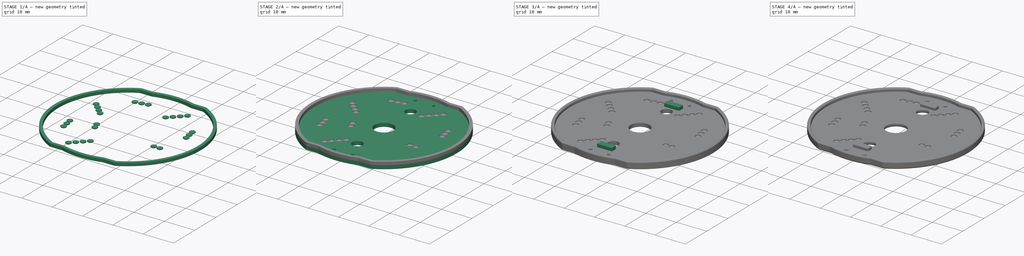
[diagram: build sequence overview — one tinted view per stage of 4, left to right]
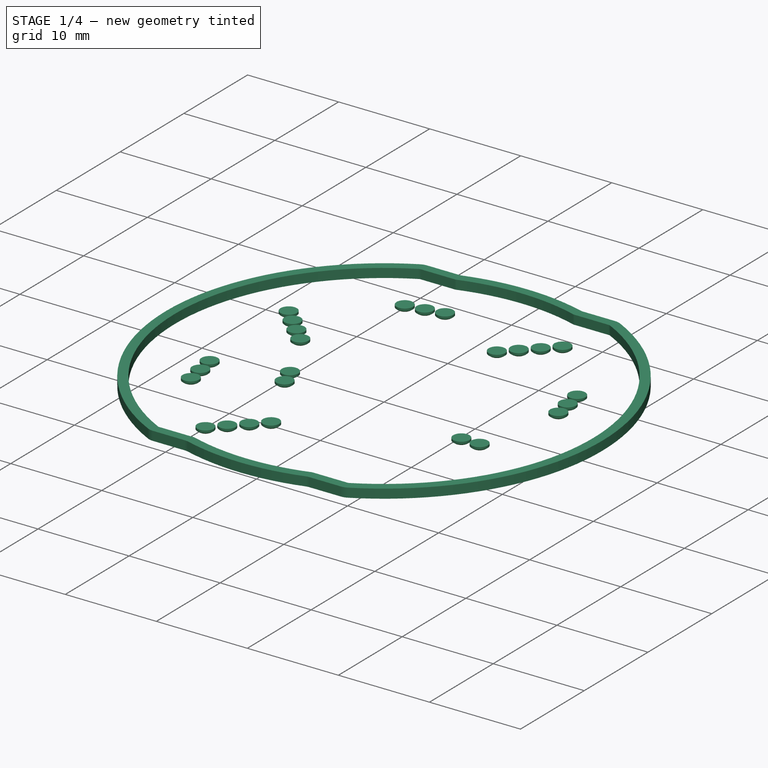
[diagram: stage 1 of 4 — iso view after this stage's code; geometry added in this stage tinted green]
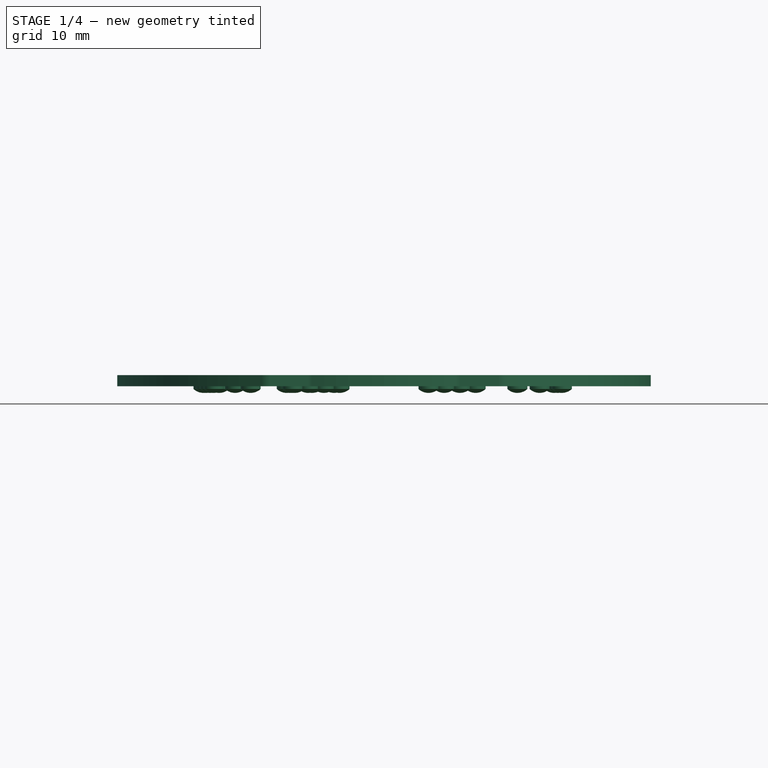
[diagram: stage 1 of 4 — front view after this stage's code; geometry added in this stage tinted green]
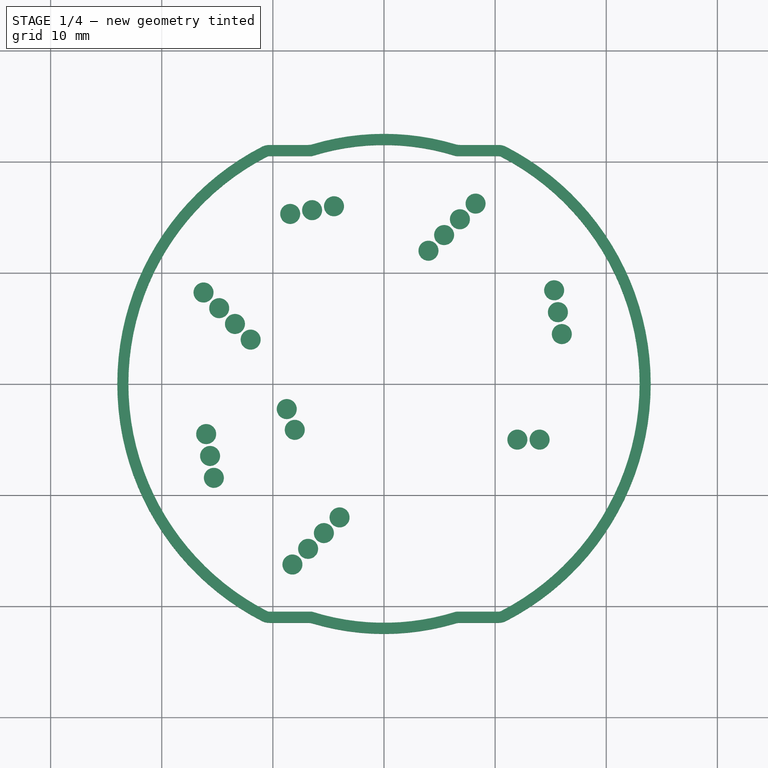
[diagram: stage 1 of 4 — top view after this stage's code; geometry added in this stage tinted green]
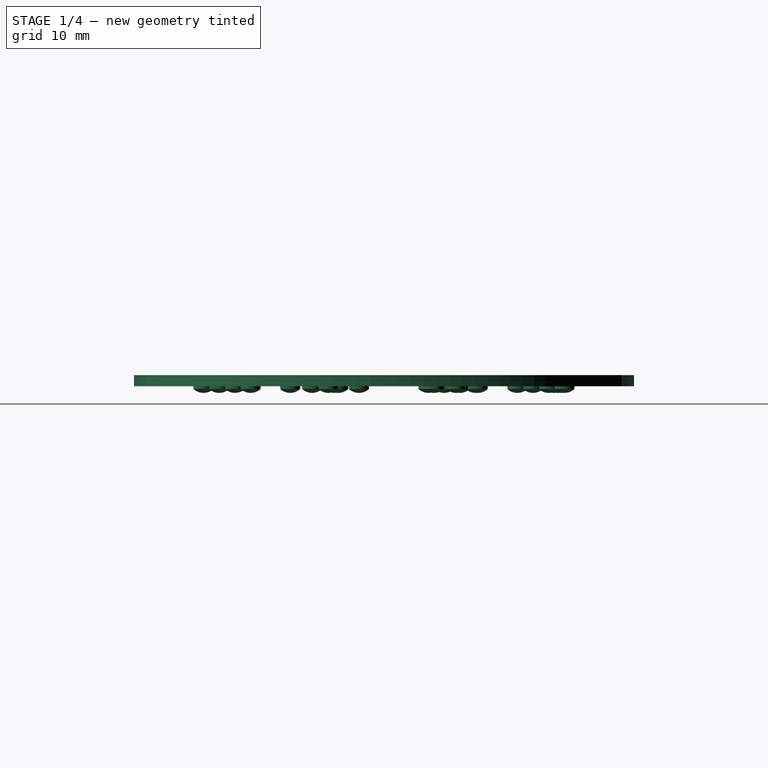
[diagram: stage 1 of 4 — right view after this stage's code; geometry added in this stage tinted green]
FCSTD DOCUMENT  (FreeCAD 0.18R16093 (Git))
Label: BackPlateMotor
License: All rights reserved
LicenseURL: http://en.wikipedia.org/wiki/All_rights_reserved
objects: Part::FeaturePython×26, Sketcher::SketchObject×4, PartDesign::Body×4, PartDesign::Fillet×4, PartDesign::Pad×3, PartDesign::Pocket×1, Part::Fuse×1, PartDesign::Revolution×1, Part::Part2DObjectPython×1, Part::Cut×1, PartDesign::FeatureBase×1, PartDesign::Chamfer×1
note: 53 computed .brp shape members not serialized (recipe doc carries the construction recipe); baked Part::Feature solids carry a one-line shape summary decoded from their .brp

FEATURE [PartDesign::Body] Body003
  Group = -> [Sketch003,Pad]
  Origin = -> Origin003
  Tip = -> Pad
FEATURE [PartDesign::Pad] Pad001
  Length = 1
  Length2 = 100
  Profile = -> Sketch003
  Type = 0
FEATURE [PartDesign::Pocket] Pocket
  BaseFeature = -> Pad001
  Length = 5
  Length2 = 100
  Profile = -> Sketch002
  Reversed = true
  Type = 1
FEATURE [Sketcher::SketchObject] Sketch001
  MapMode = 5
  Placement = pos=(0,0,0) rot=(1,0,0;1.5708rad)
  Support = -> [XZ_Plane001]
  sketch-geometry (4):
    g0: LineSegment StartX=0 StartY=0 StartZ=0 EndX=0.9 EndY=0 EndZ=0
    g1: LineSegment StartX=0.9 StartY=0 StartZ=0 EndX=0.9 EndY=-0.25 EndZ=0
    g2: ArcOfCircle CenterX=0 CenterY=0.732143 CenterZ=0 NormalX=0 NormalY=0 NormalZ=1 AngleXU=0 Radius=1.33214 StartAngle=4.71239 EndAngle=5.45417
    g3: LineSegment StartX=0 StartY=0 StartZ=0 EndX=-2e-16 EndY=-0.6 EndZ=0
  constraints (12):
    c: Coincident(g0,g-1)
    c: Horizontal(g0)
    c: Coincident(g1,g0)
    c: Vertical(g1)
    c: PointOnObject(g2,g-2)
    c: Coincident(g2,g1)
    c: PointOnObject(g2,g-2)
    c: Coincident(g3,g2)
    c: DistanceX(g0,g0) = 0.9
    c: DistanceY(g1,g1) = 0.25
    c: Coincident(g3,g0)
    c: DistanceY(g3,g3) = 0.6
FEATURE [PartDesign::Revolution] Revolution001
  Angle = 360
  Axis = (0,2e-16,1)
  Base = (0,0,0)
  Placement = pos=(0,0,0) rot=(1,0,0;1.5708rad)
  Profile = -> Sketch001
  ReferenceAxis = -> Sketch001 [V_Axis]
  Reversed = true
FEATURE [PartDesign::Body] Body001
  Group = -> [Sketch001,Revolution001]
  Origin = -> Origin001
  Tip = -> Revolution001
FEATURE [Part::FeaturePython] Point  # WARN: FeaturePython — macro-defined, semantics opaque (R4)
  X = 12
  Y = -5
  Z = 0
FEATURE [Part::FeaturePython] Point001  # WARN: FeaturePython — macro-defined, semantics opaque (R4)
  X = 14
  Y = -5
  Z = 0
FEATURE [Part::FeaturePython] Point002  # WARN: FeaturePython — macro-defined, semantics opaque (R4)
  X = -4
  Y = -12
  Z = 0
FEATURE [Part::FeaturePython] Point003  # WARN: FeaturePython — macro-defined, semantics opaque (R4)
  X = -5.41
  Y = -13.41
  Z = 0
FEATURE [Part::FeaturePython] Point004  # WARN: FeaturePython — macro-defined, semantics opaque (R4)
  X = -6.83
  Y = -14.83
  Z = 0
FEATURE [Part::FeaturePython] Point005  # WARN: FeaturePython — macro-defined, semantics opaque (R4)
  X = -8.24
  Y = -16.24
  Z = 0
FEATURE [Part::FeaturePython] Point006  # WARN: FeaturePython — macro-defined, semantics opaque (R4)
  X = -8.03
  Y = -4.12
  Z = 0
FEATURE [Part::FeaturePython] Point007  # WARN: FeaturePython — macro-defined, semantics opaque (R4)
  X = -8.75
  Y = -2.25
  Z = 0
FEATURE [Part::FeaturePython] Point008  # WARN: FeaturePython — macro-defined, semantics opaque (R4)
  X = -15.31
  Y = -8.44
  Z = 0
FEATURE [Part::FeaturePython] Point010  label="Point009"  # WARN: FeaturePython — macro-defined, semantics opaque (R4)
  X = -15.65
  Y = -6.47
  Z = 0
FEATURE [Part::FeaturePython] Point011  # WARN: FeaturePython — macro-defined, semantics opaque (R4)
  X = -16
  Y = -4.5
  Z = 0
FEATURE [Part::FeaturePython] Point012  # WARN: FeaturePython — macro-defined, semantics opaque (R4)
  X = -12
  Y = 4
  Z = 0
FEATURE [Part::FeaturePython] Point013  # WARN: FeaturePython — macro-defined, semantics opaque (R4)
  X = -13.41
  Y = 5.41
  Z = 0
FEATURE [Part::FeaturePython] Point014  # WARN: FeaturePython — macro-defined, semantics opaque (R4)
  X = -14.83
  Y = 6.83
  Z = 0
FEATURE [Part::FeaturePython] Point015  # WARN: FeaturePython — macro-defined, semantics opaque (R4)
  X = -16.24
  Y = 8.24
  Z = 0
FEATURE [Part::FeaturePython] Point016  # WARN: FeaturePython — macro-defined, semantics opaque (R4)
  X = -4.5
  Y = 16
  Z = 0
FEATURE [Part::FeaturePython] Point017  # WARN: FeaturePython — macro-defined, semantics opaque (R4)
  X = -6.47
  Y = 15.65
  Z = 0
FEATURE [Part::FeaturePython] Point018  # WARN: FeaturePython — macro-defined, semantics opaque (R4)
  X = -8.44
  Y = 15.31
  Z = 0
FEATURE [Part::FeaturePython] Point019  # WARN: FeaturePython — macro-defined, semantics opaque (R4)
  X = 4
  Y = 12
  Z = 0
FEATURE [Part::FeaturePython] Point020  # WARN: FeaturePython — macro-defined, semantics opaque (R4)
  X = 5.41
  Y = 13.41
  Z = 0
FEATURE [Part::FeaturePython] Point021  # WARN: FeaturePython — macro-defined, semantics opaque (R4)
  X = 6.83
  Y = 14.83
  Z = 0
FEATURE [Part::FeaturePython] Point022  # WARN: FeaturePython — macro-defined, semantics opaque (R4)
  X = 8.24
  Y = 16.24
  Z = 0
FEATURE [Part::FeaturePython] Point023  # WARN: FeaturePython — macro-defined, semantics opaque (R4)
  X = 16
  Y = 4.5
  Z = 0
FEATURE [Part::FeaturePython] Point024  # WARN: FeaturePython — macro-defined, semantics opaque (R4)
  X = 15.65
  Y = 6.47
  Z = 0
FEATURE [Part::FeaturePython] Point025  # WARN: FeaturePython — macro-defined, semantics opaque (R4)
  X = 15.31
  Y = 8.44
  Z = 0
FEATURE [Part::Part2DObjectPython] Block  # Draft 2D object (typed FeaturePython)
  Components = -> [Point,Point010,Point002,Point003,Point005,Point007,Point006,Point017,Point011,Point016,Point004,Point001,Point013,Point008,Point019,Point014,Point015,Point012,Point018,Point020,Point021,Point023,Point022,Point024,Point025]
FEATURE [Part::FeaturePython] PointArray  # WARN: FeaturePython — macro-defined, semantics opaque (R4)
  Base = -> Body001
  Count = 25
  PointList = -> Block
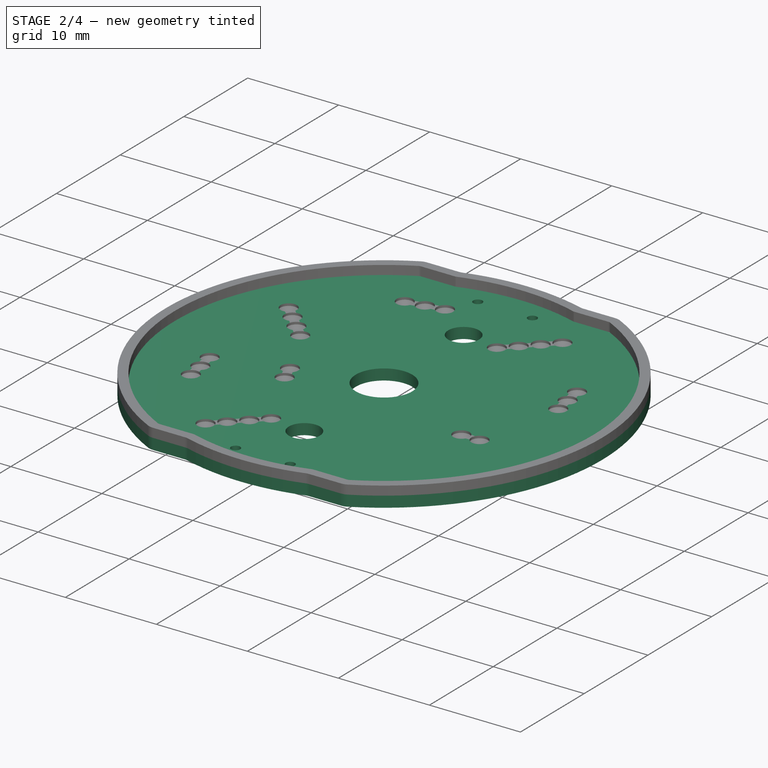
[diagram: stage 2 of 4 — iso view after this stage's code; geometry added in this stage tinted green]
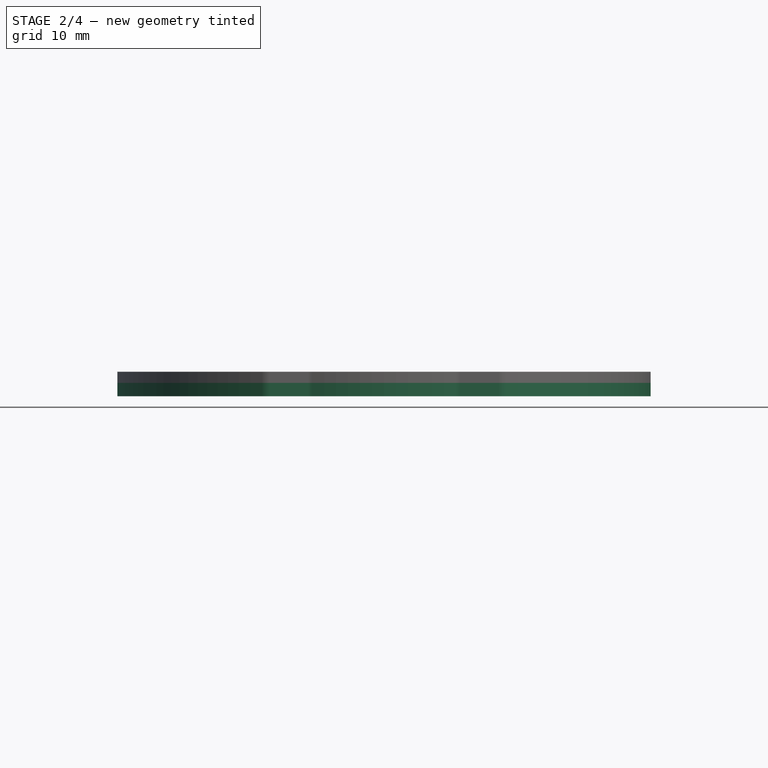
[diagram: stage 2 of 4 — front view after this stage's code; geometry added in this stage tinted green]
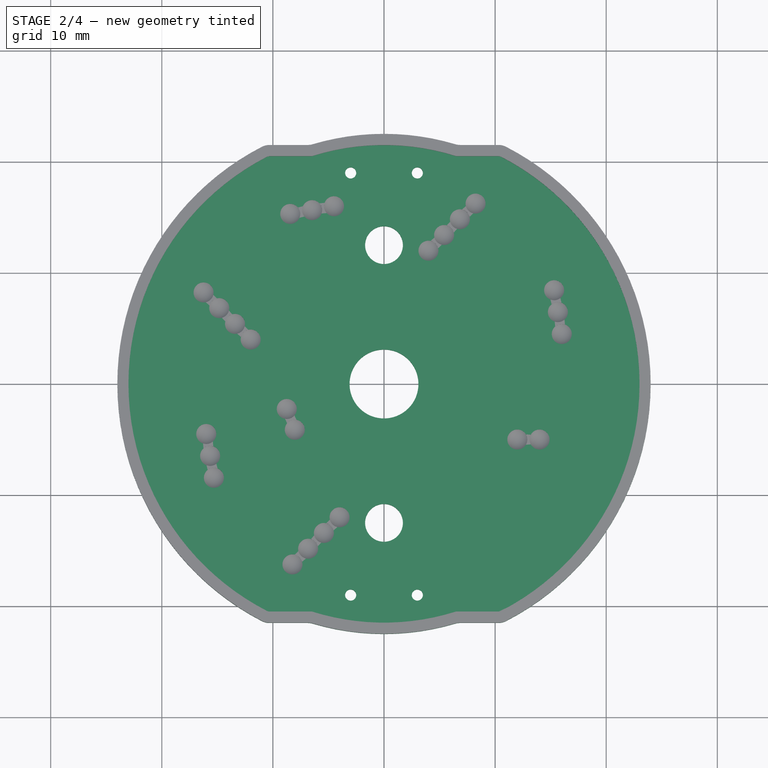
[diagram: stage 2 of 4 — top view after this stage's code; geometry added in this stage tinted green]
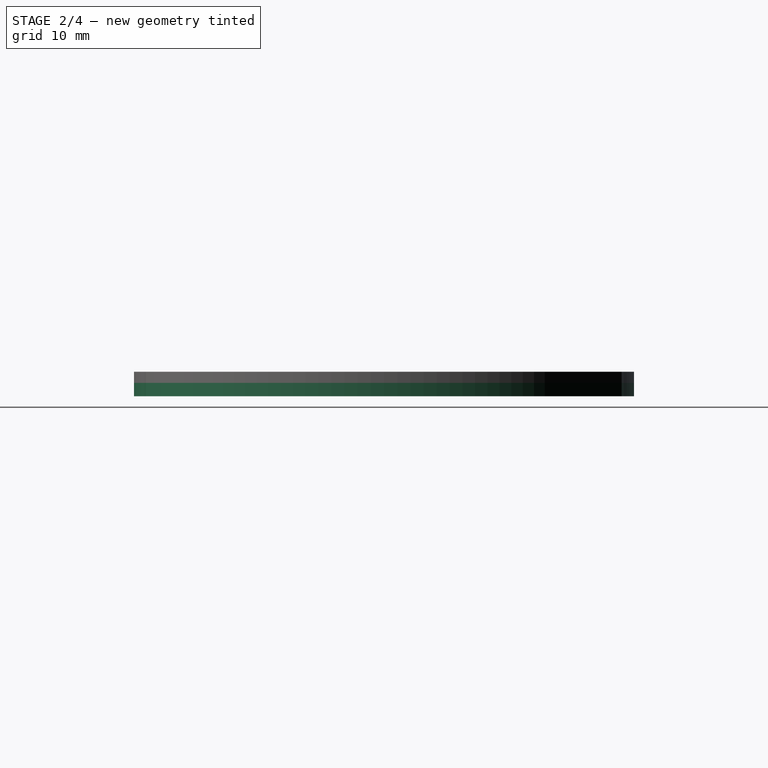
[diagram: stage 2 of 4 — right view after this stage's code; geometry added in this stage tinted green]
FEATURE [Sketcher::SketchObject] Sketch002
  MapMode = 5
  Support = -> [XY_Plane002]
  sketch-geometry (26):
    g0: ArcOfCircle [constr] CenterX=0 CenterY=0 CenterZ=0 NormalX=0 NormalY=0 NormalZ=1 AngleXU=0 Radius=22.5 StartAngle=2.04668 EndAngle=4.23651
    g1: ArcOfCircle [constr] CenterX=0 CenterY=0 CenterZ=0 NormalX=0 NormalY=0 NormalZ=1 AngleXU=0 Radius=22.5 StartAngle=5.18827 EndAngle=7.3781
    g2: ArcOfCircle [constr] CenterX=0 CenterY=0 CenterZ=0 NormalX=0 NormalY=0 NormalZ=1 AngleXU=0 Radius=21 StartAngle=1.26095 EndAngle=1.88064
    g3: ArcOfCircle [constr] CenterX=0 CenterY=0 CenterZ=0 NormalX=0 NormalY=0 NormalZ=1 AngleXU=0 Radius=21 StartAngle=4.40254 EndAngle=5.02223
    g4: LineSegment [constr] StartX=-10.3078 StartY=20 StartZ=0 EndX=-6.40312 EndY=20 EndZ=0
    g5: LineSegment [constr] StartX=6.40312 StartY=20 StartZ=0 EndX=10.3078 EndY=20 EndZ=0
    g6: LineSegment [constr] StartX=-10.3078 StartY=-20 StartZ=0 EndX=-6.40312 EndY=-20 EndZ=0
    g7: LineSegment [constr] StartX=6.40312 StartY=-20 StartZ=0 EndX=10.3078 EndY=-20 EndZ=0
    g8: LineSegment [constr] StartX=-6.40312 StartY=-20 StartZ=0 EndX=6.40312 EndY=-20 EndZ=0
    g9: LineSegment [constr] StartX=-6.40312 StartY=20 StartZ=0 EndX=6.40312 EndY=20 EndZ=0
    g10: ArcOfCircle CenterX=0 CenterY=0 CenterZ=0 NormalX=0 NormalY=0 NormalZ=1 AngleXU=0 Radius=23 StartAngle=2.04668 EndAngle=4.23651
    g11: ArcOfCircle CenterX=0 CenterY=0 CenterZ=0 NormalX=0 NormalY=0 NormalZ=1 AngleXU=0 Radius=23 StartAngle=5.18827 EndAngle=7.3781
    g12: LineSegment StartX=-10.3078 StartY=20.5 StartZ=0 EndX=-6.55744 EndY=20.5 EndZ=0
    g13: ArcOfCircle CenterX=-10.3078 CenterY=20 CenterZ=0 NormalX=0 NormalY=0 NormalZ=1 AngleXU=0 Radius=0.5 StartAngle=1.5708 EndAngle=2.04668
    g14: ArcOfCircle CenterX=-10.3078 CenterY=-20 CenterZ=0 NormalX=0 NormalY=0 NormalZ=1 AngleXU=0 Radius=0.5 StartAngle=4.23651 EndAngle=4.71239
    g15: LineSegment StartX=-10.3078 StartY=-20.5 StartZ=0 EndX=-6.55744 EndY=-20.5 EndZ=0
    g16: ArcOfCircle CenterX=-6.55744 CenterY=-21 CenterZ=0 NormalX=0 NormalY=0 NormalZ=1 AngleXU=0 Radius=0.5 StartAngle=1.26813 EndAngle=1.5708
    g17: ArcOfCircle CenterX=0 CenterY=0 CenterZ=0 NormalX=0 NormalY=0 NormalZ=1 AngleXU=0 Radius=21.5 StartAngle=4.40972 EndAngle=5.01505
    g18: LineSegment StartX=6.55744 StartY=-20.5 StartZ=0 EndX=10.3078 EndY=-20.5 EndZ=0
    g19: ArcOfCircle CenterX=6.55744 CenterY=-21 CenterZ=0 NormalX=0 NormalY=0 NormalZ=1 AngleXU=0 Radius=0.5 StartAngle=1.5708 EndAngle=1.87346
    g20: ArcOfCircle CenterX=10.3078 CenterY=-20 CenterZ=0 NormalX=0 NormalY=0 NormalZ=1 AngleXU=0 Radius=0.5 StartAngle=4.71239 EndAngle=5.18827
    g21: ArcOfCircle CenterX=-6.55744 CenterY=21 CenterZ=0 NormalX=0 NormalY=0 NormalZ=1 AngleXU=0 Radius=0.5 StartAngle=4.71239 EndAngle=5.01505
    g22: ArcOfCircle CenterX=0 CenterY=0 CenterZ=0 NormalX=0 NormalY=0 NormalZ=1 AngleXU=0 Radius=21.5 StartAngle=1.26813 EndAngle=1.87346
    g23: LineSegment StartX=6.55744 StartY=20.5 StartZ=0 EndX=10.3078 EndY=20.5 EndZ=0
    g24: ArcOfCircle CenterX=6.55744 CenterY=21 CenterZ=0 NormalX=0 NormalY=0 NormalZ=1 AngleXU=0 Radius=0.5 StartAngle=4.40972 EndAngle=4.71239
    g25: ArcOfCircle CenterX=10.3078 CenterY=20 CenterZ=0 NormalX=0 NormalY=0 NormalZ=1 AngleXU=0 Radius=0.5 StartAngle=1.09491 EndAngle=1.5708
  constraints (63):
    c: Coincident(g0,g-1)
    c: Coincident(g1,g0)
    c: Coincident(g2,g0)
    c: Coincident(g3,g0)
    c: Equal(g0,g1)
    c: Radius(g1) = 22.5
    c: Radius(g2) = 21
    c: Coincident(g4,g0)
    c: Coincident(g4,g2)
    c: Coincident(g5,g2)
    c: Coincident(g5,g1)
    c: Horizontal(g4)
    c: Horizontal(g5)
    c: Coincident(g6,g0)
    c: Coincident(g6,g3)
    c: Coincident(g7,g3)
    c: Coincident(g7,g1)
    c: Horizontal(g7)
    c: Horizontal(g6)
    c: DistanceY(g3,g0) = 20
    c: Coincident(g8,g3)
    c: Coincident(g8,g3)
    c: Coincident(g9,g2)
    c: Coincident(g9,g2)
    c: Horizontal(g9)
    c: Horizontal(g8)
    c: Symmetric(g3,g2,g0)
    c: Coincident(g11,g10)
    c: Horizontal(g12)
    c: Coincident(g13,g0)
    c: Tangent(g13,g12) = 1.5708
    c: Tangent(g13,g10) = -1.5708
    c: Radius(g13) = 0.5
    c: Coincident(g14,g0)
    c: Tangent(g14,g10) = -1.5708
    c: Horizontal(g15)
    c: Tangent(g15,g14) = -1.5708
    c: Coincident(g17,g-1)
    c: Tangent(g15,g16) = 1.5708
    c: Tangent(g17,g16) = 1.5708
    c: Horizontal(g18)
    c: Equal(g16,g13)
    c: Coincident(g10,g17)
    c: Tangent(g19,g17) = 1.5708
    c: Tangent(g19,g18) = 1.5708
    c: Tangent(g20,g18) = -1.5708
    c: Tangent(g11,g20) = -1.5708
    c: Equal(g19,g13)
    c: Coincident(g22,g10)
    c: Equal(g21,g13)
    c: Tangent(g21,g12) = -1.5708
    c: Tangent(g21,g22) = 1.5708
    c: Horizontal(g23)
    c: Coincident(g25,g1)
    c: Equal(g24,g13)
    c: Tangent(g24,g22) = 1.5708
    c: Tangent(g24,g23) = -1.5708
    c: Tangent(g25,g23) = 1.5708
    c: Tangent(g11,g25) = -1.5708
    c: Coincident(g20,g1)
    c: Equal(g22,g17)
    c: Radius(g22) = 21.5
    c: Equal(g20,g13)
FEATURE [Sketcher::SketchObject] Sketch003
  MapMode = 5
  Support = -> [XY_Plane003]
  sketch-geometry (33):
    g0: ArcOfCircle [constr] CenterX=0 CenterY=0 CenterZ=0 NormalX=0 NormalY=0 NormalZ=1 AngleXU=0 Radius=22.5 StartAngle=2.04668 EndAngle=4.23651
    g1: ArcOfCircle [constr] CenterX=0 CenterY=0 CenterZ=0 NormalX=0 NormalY=0 NormalZ=1 AngleXU=0 Radius=22.5 StartAngle=5.18827 EndAngle=7.3781
    g2: ArcOfCircle [constr] CenterX=0 CenterY=0 CenterZ=0 NormalX=0 NormalY=0 NormalZ=1 AngleXU=0 Radius=21 StartAngle=1.26095 EndAngle=1.88064
    g3: ArcOfCircle [constr] CenterX=0 CenterY=0 CenterZ=0 NormalX=0 NormalY=0 NormalZ=1 AngleXU=0 Radius=21 StartAngle=4.40254 EndAngle=5.02223
    g4: LineSegment [constr] StartX=-10.3078 StartY=20 StartZ=0 EndX=-6.40312 EndY=20 EndZ=0
    g5: LineSegment [constr] StartX=6.40312 StartY=20 StartZ=0 EndX=10.3078 EndY=20 EndZ=0
    g6: LineSegment [constr] StartX=-10.3078 StartY=-20 StartZ=0 EndX=-6.40312 EndY=-20 EndZ=0
    g7: LineSegment [constr] StartX=6.40312 StartY=-20 StartZ=0 EndX=10.3078 EndY=-20 EndZ=0
    g8: LineSegment [constr] StartX=-6.40312 StartY=-20 StartZ=0 EndX=6.40312 EndY=-20 EndZ=0
    g9: LineSegment [constr] StartX=-6.40312 StartY=20 StartZ=0 EndX=6.40312 EndY=20 EndZ=0
    g10: ArcOfCircle CenterX=0 CenterY=0 CenterZ=0 NormalX=0 NormalY=0 NormalZ=1 AngleXU=0 Radius=24 StartAngle=2.04668 EndAngle=4.23651
    g11: ArcOfCircle CenterX=0 CenterY=0 CenterZ=0 NormalX=0 NormalY=0 NormalZ=1 AngleXU=0 Radius=24 StartAngle=5.18827 EndAngle=7.3781
    g12: LineSegment StartX=-10.3078 StartY=21.5 StartZ=0 EndX=-6.85565 EndY=21.5 EndZ=0
    g13: ArcOfCircle CenterX=-10.3078 CenterY=20 CenterZ=0 NormalX=0 NormalY=0 NormalZ=1 AngleXU=0 Radius=1.5 StartAngle=1.5708 EndAngle=2.04668
    g14: ArcOfCircle CenterX=-10.3078 CenterY=-20 CenterZ=0 NormalX=0 NormalY=0 NormalZ=1 AngleXU=0 Radius=1.5 StartAngle=4.23651 EndAngle=4.71239
    g15: LineSegment StartX=-10.3078 StartY=-21.5 StartZ=0 EndX=-6.85565 EndY=-21.5 EndZ=0
    g16: ArcOfCircle CenterX=-6.85565 CenterY=-23 CenterZ=0 NormalX=0 NormalY=0 NormalZ=1 AngleXU=0 Radius=1.5 StartAngle=1.28111 EndAngle=1.5708
    g17: ArcOfCircle CenterX=0 CenterY=0 CenterZ=0 NormalX=0 NormalY=0 NormalZ=1 AngleXU=0 Radius=22.5 StartAngle=4.4227 EndAngle=5.00208
    g18: LineSegment StartX=6.85565 StartY=-21.5 StartZ=0 EndX=10.3078 EndY=-21.5 EndZ=0
    g19: ArcOfCircle CenterX=6.85565 CenterY=-23 CenterZ=0 NormalX=0 NormalY=0 NormalZ=1 AngleXU=0 Radius=1.5 StartAngle=1.5708 EndAngle=1.86048
    g20: ArcOfCircle CenterX=10.3078 CenterY=-20 CenterZ=0 NormalX=0 NormalY=0 NormalZ=1 AngleXU=0 Radius=1.5 StartAngle=4.71239 EndAngle=5.18827
    g21: ArcOfCircle CenterX=-6.85565 CenterY=23 CenterZ=0 NormalX=0 NormalY=0 NormalZ=1 AngleXU=0 Radius=1.5 StartAngle=4.71239 EndAngle=5.00208
    g22: ArcOfCircle CenterX=0 CenterY=0 CenterZ=0 NormalX=0 NormalY=0 NormalZ=1 AngleXU=0 Radius=22.5 StartAngle=1.28111 EndAngle=1.86048
    g23: LineSegment StartX=6.85565 StartY=21.5 StartZ=0 EndX=10.3078 EndY=21.5 EndZ=0
    g24: ArcOfCircle CenterX=6.85565 CenterY=23 CenterZ=0 NormalX=0 NormalY=0 NormalZ=1 AngleXU=0 Radius=1.5 StartAngle=4.4227 EndAngle=4.71239
    g25: ArcOfCircle CenterX=10.3078 CenterY=20 CenterZ=0 NormalX=0 NormalY=0 NormalZ=1 AngleXU=0 Radius=1.5 StartAngle=1.09491 EndAngle=1.5708
    g26: Circle CenterX=0 CenterY=0 CenterZ=0 NormalX=0 NormalY=0 NormalZ=1 AngleXU=0 Radius=3.1
    g27: Circle CenterX=0 CenterY=12.5 CenterZ=0 NormalX=0 NormalY=0 NormalZ=1 AngleXU=0 Radius=1.7
    g28: Circle CenterX=0 CenterY=-12.5 CenterZ=0 NormalX=0 NormalY=0 NormalZ=1 AngleXU=0 Radius=1.7
    g29: Circle CenterX=-3 CenterY=19 CenterZ=0 NormalX=0 NormalY=0 NormalZ=1 AngleXU=0 Radius=0.5
    g30: Circle CenterX=3 CenterY=19 CenterZ=0 NormalX=0 NormalY=0 NormalZ=1 AngleXU=0 Radius=0.5
    g31: Circle CenterX=-3 CenterY=-19 CenterZ=0 NormalX=0 NormalY=0 NormalZ=1 AngleXU=0 Radius=0.5
    g32: Circle CenterX=3 CenterY=-19 CenterZ=0 NormalX=0 NormalY=0 NormalZ=1 AngleXU=0 Radius=0.5
  constraints (79):
    c: Coincident(g0,g-1)
    c: Coincident(g1,g0)
    c: Coincident(g2,g0)
    c: Coincident(g3,g0)
    c: Equal(g0,g1)
    c: Radius(g1) = 22.5
    c: Radius(g2) = 21
    c: Coincident(g4,g0)
    c: Coincident(g4,g2)
    c: Coincident(g5,g2)
    c: Coincident(g5,g1)
    c: Horizontal(g4)
    c: Horizontal(g5)
    c: Coincident(g6,g0)
    c: Coincident(g6,g3)
    c: Coincident(g7,g3)
    c: Coincident(g7,g1)
    c: Horizontal(g7)
    c: Horizontal(g6)
    c: DistanceY(g3,g0) = 20
    c: Coincident(g8,g3)
    c: Coincident(g8,g3)
    c: Coincident(g9,g2)
    c: Coincident(g9,g2)
    c: Horizontal(g9)
    c: Horizontal(g8)
    c: Symmetric(g3,g2,g0)
    c: Coincident(g11,g10)
    c: Horizontal(g12)
    c: Coincident(g13,g0)
    c: Tangent(g13,g12) = 1.5708
    c: Tangent(g13,g10) = -1.5708
    c: Radius(g13) = 1.5
    c: Coincident(g14,g0)
    c: Tangent(g14,g10) = -1.5708
    c: Horizontal(g15)
    c: Tangent(g15,g14) = -1.5708
    c: Coincident(g17,g-1)
    c: Tangent(g15,g16) = 1.5708
    c: Tangent(g17,g16) = 1.5708
    c: Horizontal(g18)
    c: Equal(g16,g13)
    c: Coincident(g10,g17)
    c: Tangent(g19,g17) = 1.5708
    c: Tangent(g19,g18) = 1.5708
    c: Tangent(g20,g18) = -1.5708
    c: Tangent(g11,g20) = -1.5708
    c: Equal(g19,g13)
    c: Coincident(g22,g10)
    c: Equal(g21,g13)
    c: Tangent(g21,g12) = -1.5708
    c: Tangent(g21,g22) = 1.5708
    c: Horizontal(g23)
    c: Coincident(g25,g1)
    c: Equal(g24,g13)
    c: Tangent(g24,g22) = 1.5708
    c: Tangent(g24,g23) = -1.5708
    c: Tangent(g25,g23) = 1.5708
    c: Tangent(g11,g25) = -1.5708
    c: Coincident(g20,g1)
    c: Equal(g22,g17)
    c: Radius(g22) = 22.5
    c: Equal(g20,g13)
    c: Coincident(g26,g10)
    c: Radius(g26) = 3.1
    c: PointOnObject(g27,g-2)
    c: Equal(g28,g27)
    c: Diameter(g27) = 3.4
    c: Symmetric(g27,g28,g10)
    c: DistanceY(g28,g27) = 25
    c: Equal(g32,g31)
    c: Equal(g31,g30)
    c: Equal(g30,g29)
    c: Diameter(g30) = 1
    c: Symmetric(g29,g32,g10)
    c: Symmetric(g31,g32,g-2)
    c: Symmetric(g29,g30,g-2)
    c: DistanceY(g10,g29) = 19
    c: DistanceX(g29,g30) = 6
FEATURE [PartDesign::Pad] Pad
  Length = 1.2
  Length2 = 100
  Profile = -> Sketch003
  Reversed = true
  Type = 0
FEATURE [PartDesign::Body] Body002
  Group = -> [Sketch002,Pad001,Pocket]
  Origin = -> Origin002
  Tip = -> Pocket
FEATURE [Part::Fuse] Fusion
  Base = -> Body002
  Tool = -> Body003
FEATURE [Part::Cut] Cut
  Base = -> Fusion
  Tool = -> PointArray
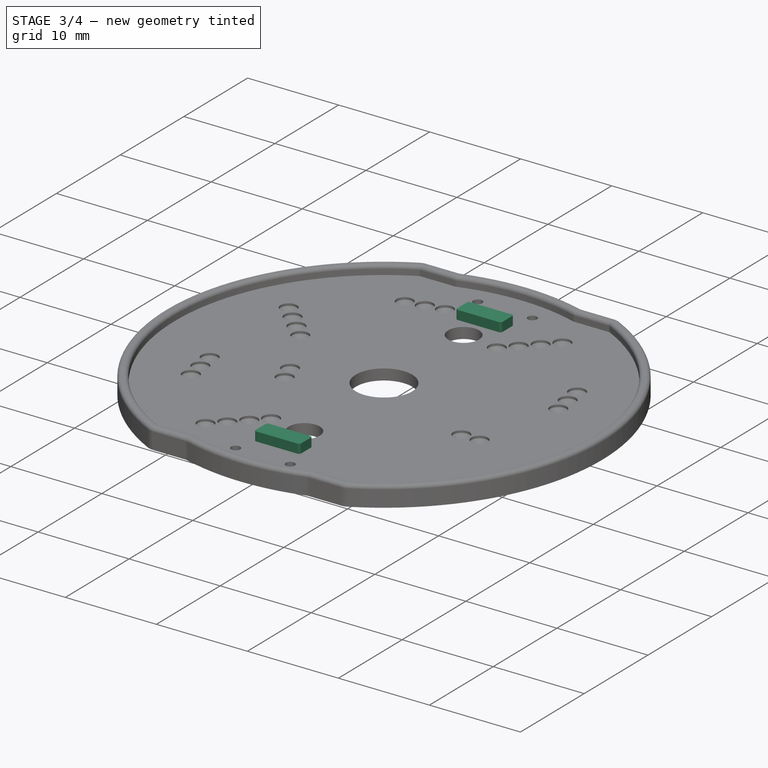
[diagram: stage 3 of 4 — iso view after this stage's code; geometry added in this stage tinted green]
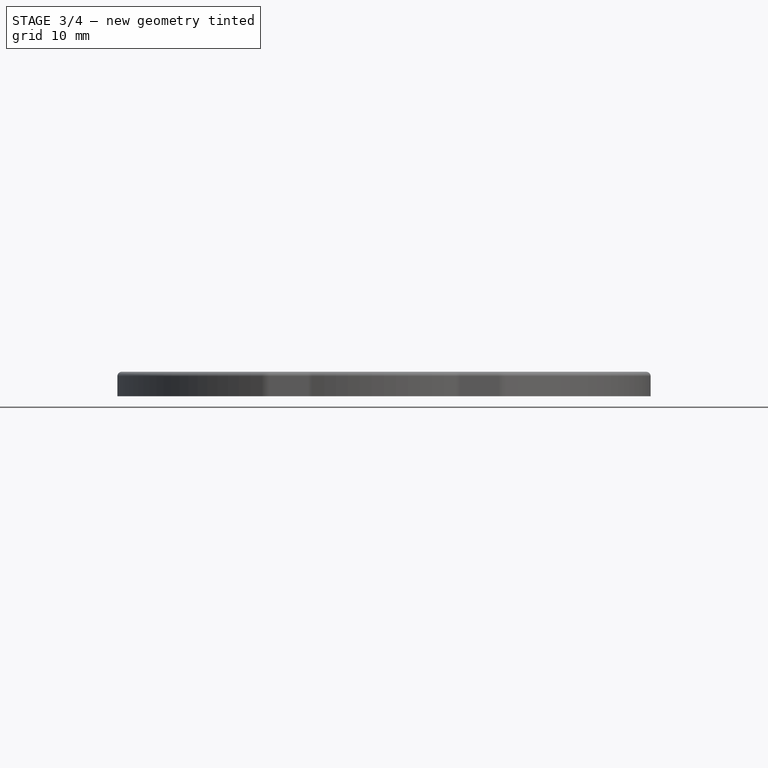
[diagram: stage 3 of 4 — front view after this stage's code; geometry added in this stage tinted green]
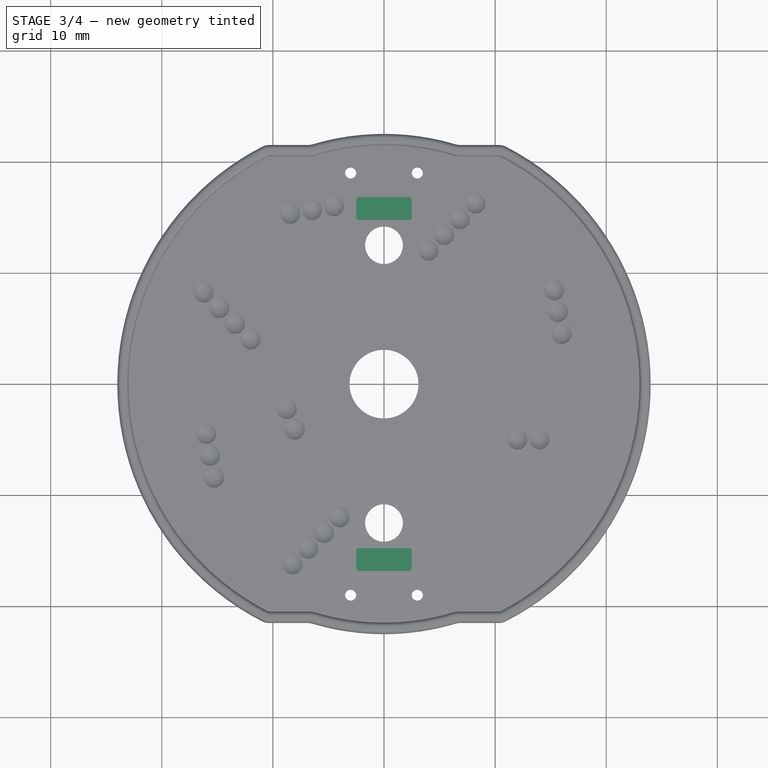
[diagram: stage 3 of 4 — top view after this stage's code; geometry added in this stage tinted green]
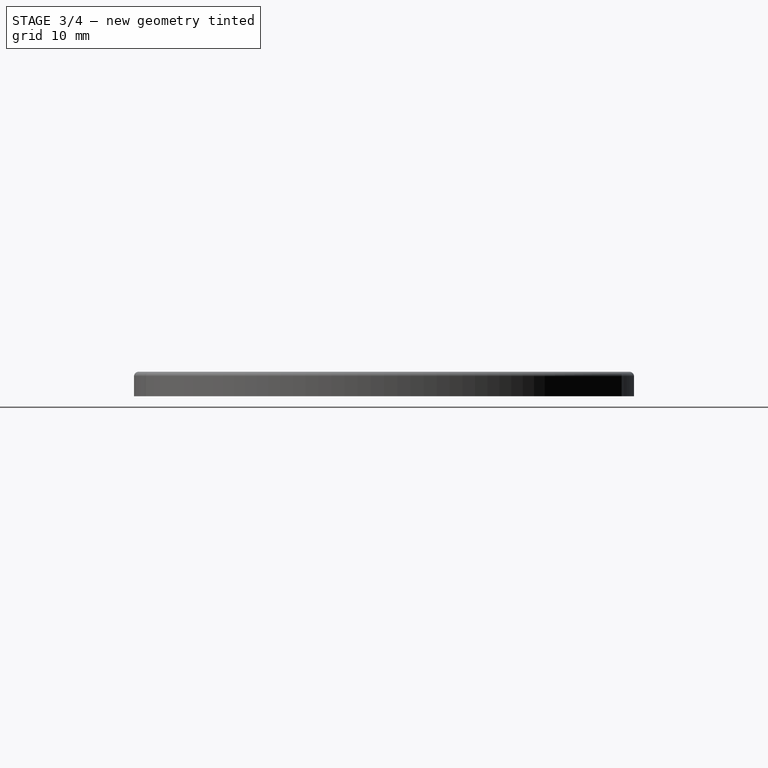
[diagram: stage 3 of 4 — right view after this stage's code; geometry added in this stage tinted green]
FEATURE [PartDesign::FeatureBase] BaseFeature
  BaseFeature = -> Cut
FEATURE [Sketcher::SketchObject] Sketch
  MapMode = 5
  Support = -> [XY_Plane]
  sketch-geometry (16):
    g0: LineSegment StartX=-2.25 StartY=16.8 StartZ=0 EndX=2.25 EndY=16.8 EndZ=0
    g1: LineSegment StartX=2.5 StartY=16.55 StartZ=0 EndX=2.5 EndY=15.05 EndZ=0
    g2: LineSegment StartX=2.25 StartY=14.8 StartZ=0 EndX=-2.25 EndY=14.8 EndZ=0
    g3: LineSegment StartX=-2.5 StartY=15.05 StartZ=0 EndX=-2.5 EndY=16.55 EndZ=0
    g4: LineSegment StartX=-2.25 StartY=-14.8 StartZ=0 EndX=2.25 EndY=-14.8 EndZ=0
    g5: LineSegment StartX=2.5 StartY=-15.05 StartZ=0 EndX=2.5 EndY=-16.55 EndZ=0
    g6: LineSegment StartX=2.25 StartY=-16.8 StartZ=0 EndX=-2.25 EndY=-16.8 EndZ=0
    g7: LineSegment StartX=-2.5 StartY=-16.55 StartZ=0 EndX=-2.5 EndY=-15.05 EndZ=0
    g8: ArcOfCircle CenterX=-2.25 CenterY=16.55 CenterZ=0 NormalX=0 NormalY=0 NormalZ=1 AngleXU=0 Radius=0.25 StartAngle=1.5708 EndAngle=3.14159
    g9: ArcOfCircle CenterX=2.25 CenterY=15.05 CenterZ=0 NormalX=0 NormalY=0 NormalZ=1 AngleXU=0 Radius=0.25 StartAngle=4.71239 EndAngle=6.28319
    g10: ArcOfCircle CenterX=2.25 CenterY=16.55 CenterZ=0 NormalX=0 NormalY=0 NormalZ=1 AngleXU=0 Radius=0.25 StartAngle=-5.3e-15 EndAngle=1.5708
    g11: ArcOfCircle CenterX=-2.25 CenterY=15.05 CenterZ=0 NormalX=0 NormalY=0 NormalZ=1 AngleXU=0 Radius=0.25 StartAngle=3.14159 EndAngle=4.71239
    g12: ArcOfCircle CenterX=-2.25 CenterY=-15.05 CenterZ=0 NormalX=0 NormalY=0 NormalZ=1 AngleXU=0 Radius=0.25 StartAngle=1.5708 EndAngle=3.14159
    g13: ArcOfCircle CenterX=2.25 CenterY=-15.05 CenterZ=0 NormalX=0 NormalY=0 NormalZ=1 AngleXU=0 Radius=0.25 StartAngle=3.2e-15 EndAngle=1.5708
    g14: ArcOfCircle CenterX=2.25 CenterY=-16.55 CenterZ=0 NormalX=0 NormalY=0 NormalZ=1 AngleXU=0 Radius=0.25 StartAngle=4.71239 EndAngle=6.28319
    g15: ArcOfCircle CenterX=-2.25 CenterY=-16.55 CenterZ=0 NormalX=0 NormalY=0 NormalZ=1 AngleXU=0 Radius=0.25 StartAngle=3.14159 EndAngle=4.71239
  constraints (37):
    c: Horizontal(g2)
    c: Vertical(g1)
    c: Vertical(g3)
    c: Horizontal(g4)
    c: Horizontal(g6)
    c: Vertical(g5)
    c: Vertical(g7)
    c: Tangent(g3,g8) = 1.5708
    c: Tangent(g0,g8) = 1.5708
    c: Tangent(g2,g9) = 1.5708
    c: Tangent(g1,g9) = 1.5708
    c: Tangent(g1,g10) = 1.5708
    c: Tangent(g0,g10) = 1.5708
    c: Tangent(g2,g11) = 1.5708
    c: Tangent(g3,g11) = 1.5708
    c: Tangent(g7,g12) = 1.5708
    c: Tangent(g4,g12) = 1.5708
    c: Tangent(g4,g13) = 1.5708
    c: Tangent(g5,g13) = 1.5708
    c: Tangent(g5,g14) = 1.5708
    c: Tangent(g6,g14) = 1.5708
    c: Tangent(g6,g15) = 1.5708
    c: Tangent(g7,g15) = 1.5708
    c: Equal(g12,g13)
    c: Equal(g13,g14)
    c: Equal(g14,g15)
    c: Equal(g15,g8)
    c: Equal(g8,g10)
    c: Equal(g10,g9)
    c: Equal(g9,g11)
    c: Radius(g10) = 0.25
    c: DistanceY(g2,g0) = 2
    c: DistanceX(g3,g1) = 5
    c: Symmetric(g0,g0,g-2)
    c: DistanceY(g-1,g2) = 14.8
    c: Symmetric(g12,g9,g-1)
    c: Symmetric(g14,g8,g-1)
FEATURE [PartDesign::Pad] Pad002
  BaseFeature = -> BaseFeature
  Length = 1
  Length2 = 100
  Profile = -> Sketch
  Type = 0
FEATURE [PartDesign::Fillet] Fillet
  Base = -> Pad002 [Face1]
  BaseFeature = -> Pad002
  Radius = 0.4
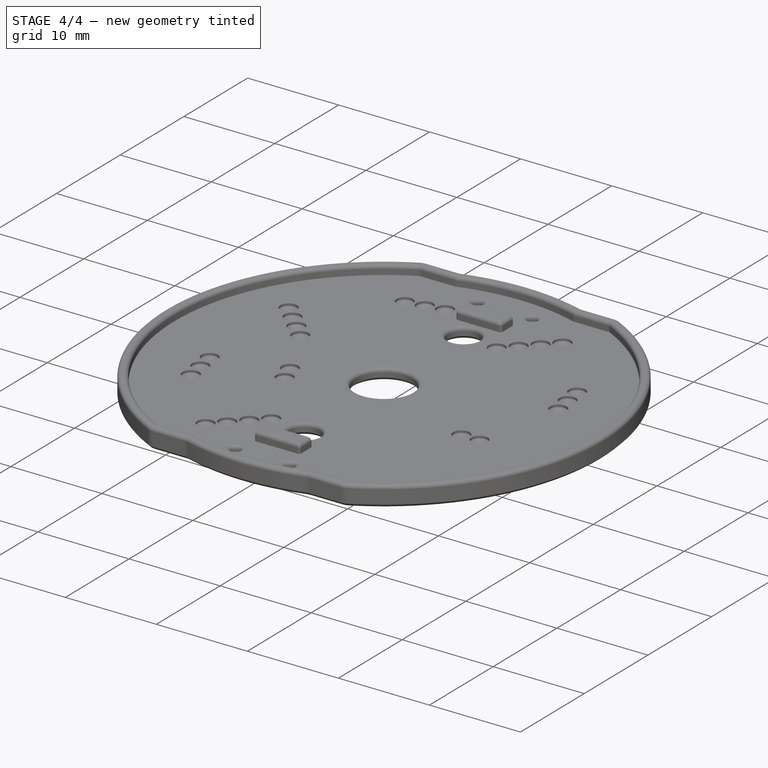
[diagram: stage 4 of 4 — iso view after this stage's code; geometry added in this stage tinted green]
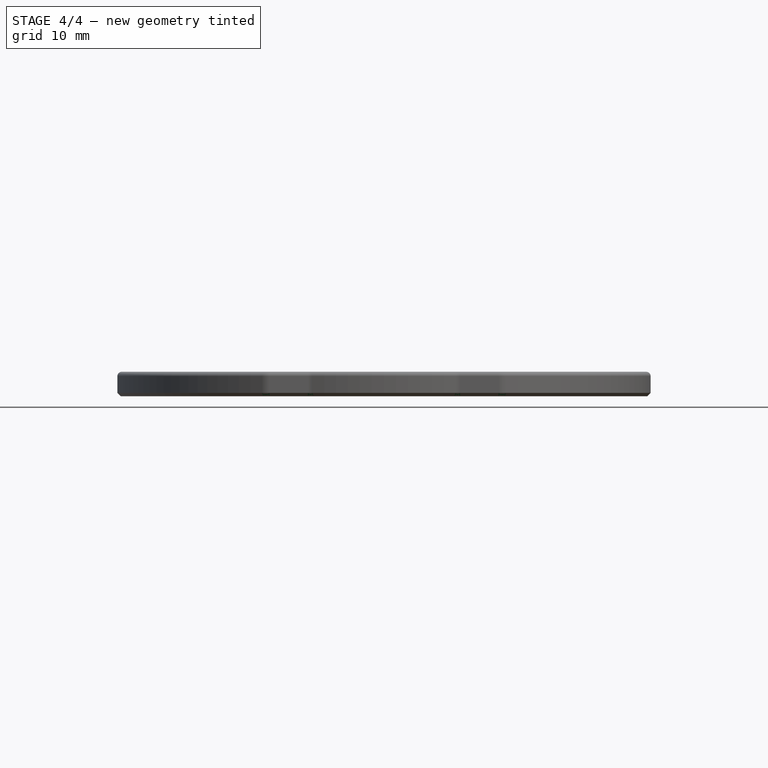
[diagram: stage 4 of 4 — front view after this stage's code; geometry added in this stage tinted green]
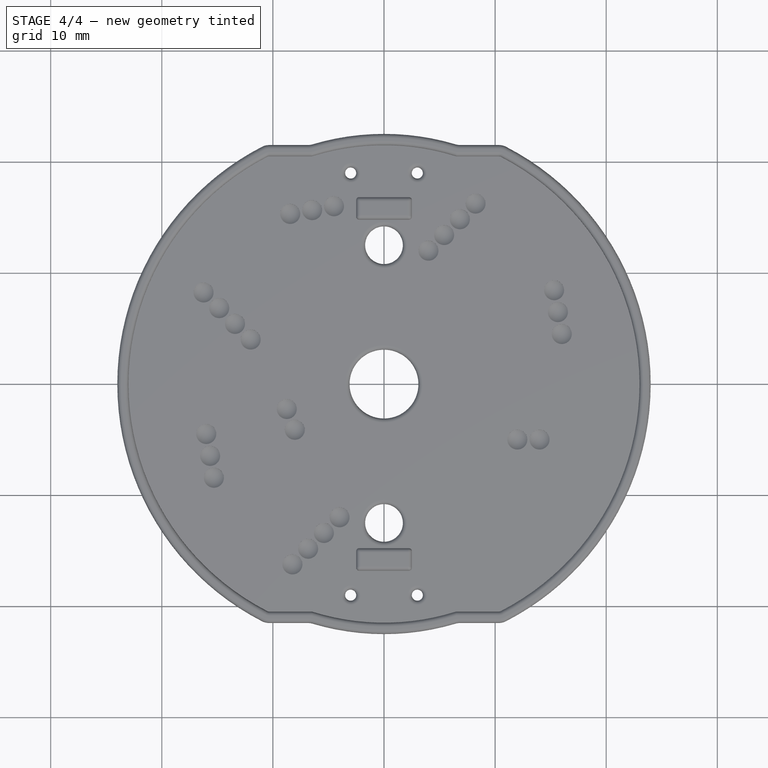
[diagram: stage 4 of 4 — top view after this stage's code; geometry added in this stage tinted green]
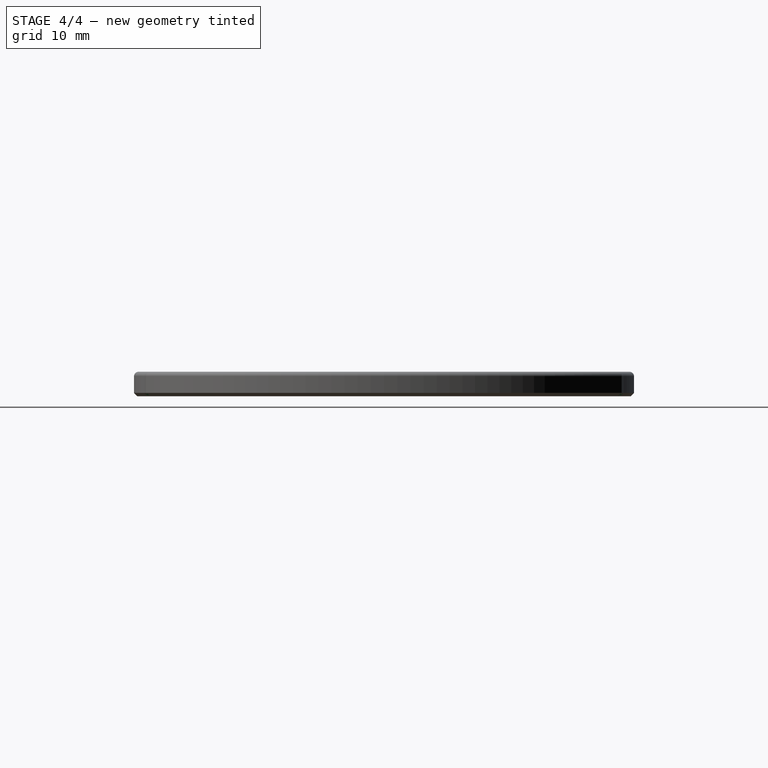
[diagram: stage 4 of 4 — right view after this stage's code; geometry added in this stage tinted green]
FEATURE [PartDesign::Fillet] Fillet001
  Base = -> Fillet [Face144]
  BaseFeature = -> Fillet
  Radius = 0.4
FEATURE [PartDesign::Fillet] Fillet002
  Base = -> Fillet001 [Face112]
  BaseFeature = -> Fillet001
  Radius = 0.4
FEATURE [PartDesign::Fillet] Fillet003
  Base = -> Fillet002 [Edge59,Edge51,Edge50,Edge48,Edge39,Edge70,Edge60]
  BaseFeature = -> Fillet002
  Radius = 0.4
FEATURE [PartDesign::Chamfer] Chamfer
  Base = -> Fillet003 [Face130]
  BaseFeature = -> Fillet003
  Size = 0.3
FEATURE [PartDesign::Body] Body
  BaseFeature = -> Cut
  Group = -> [BaseFeature,Sketch,Pad002,Fillet,Fillet001,Fillet002,Fillet003,Chamfer]
  Origin = -> Origin
  Tip = -> Chamfer
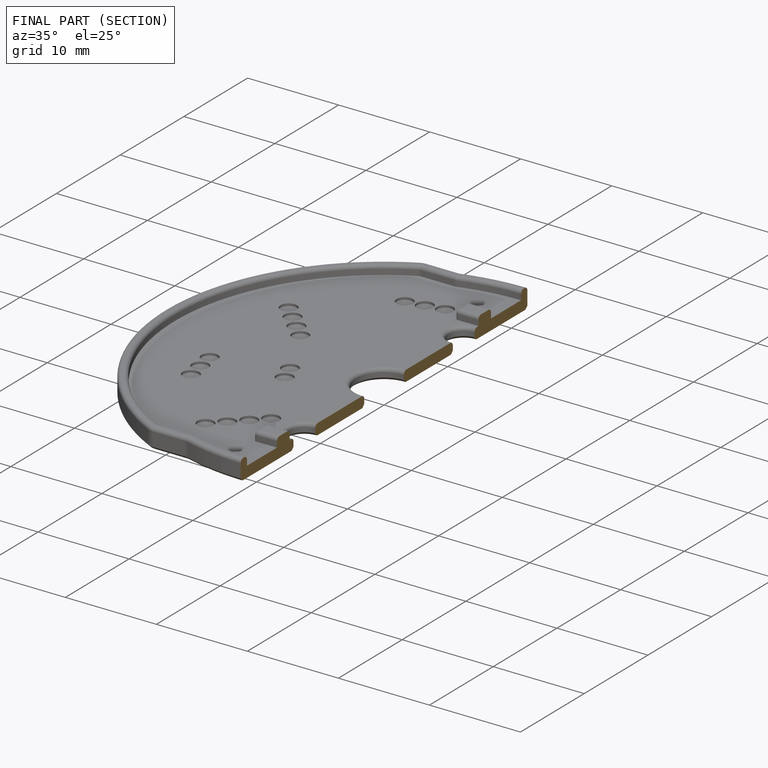
[diagram: finished part — half-section view (interior)]
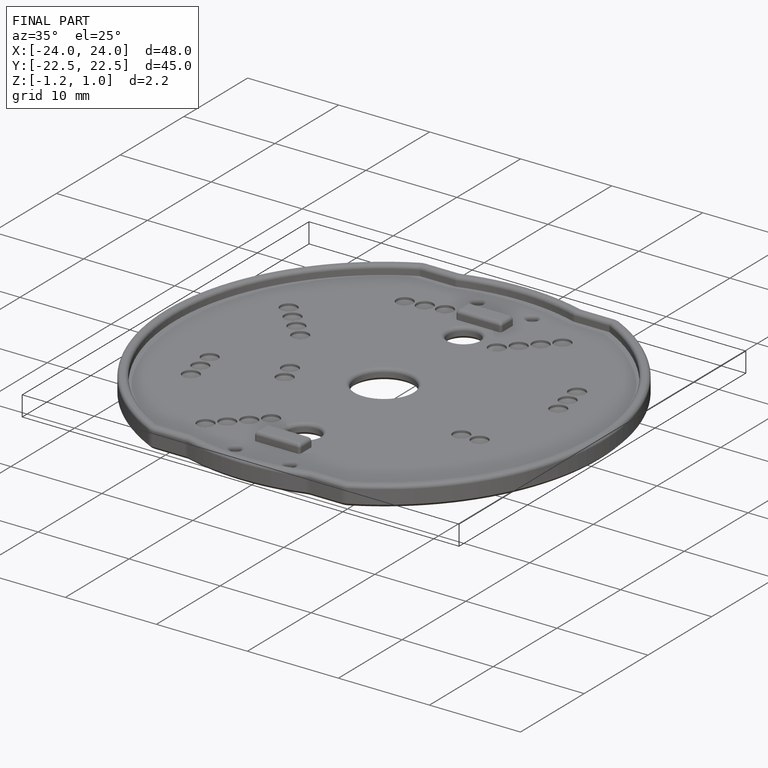
[diagram: finished part — iso view with bounding-box wireframe]
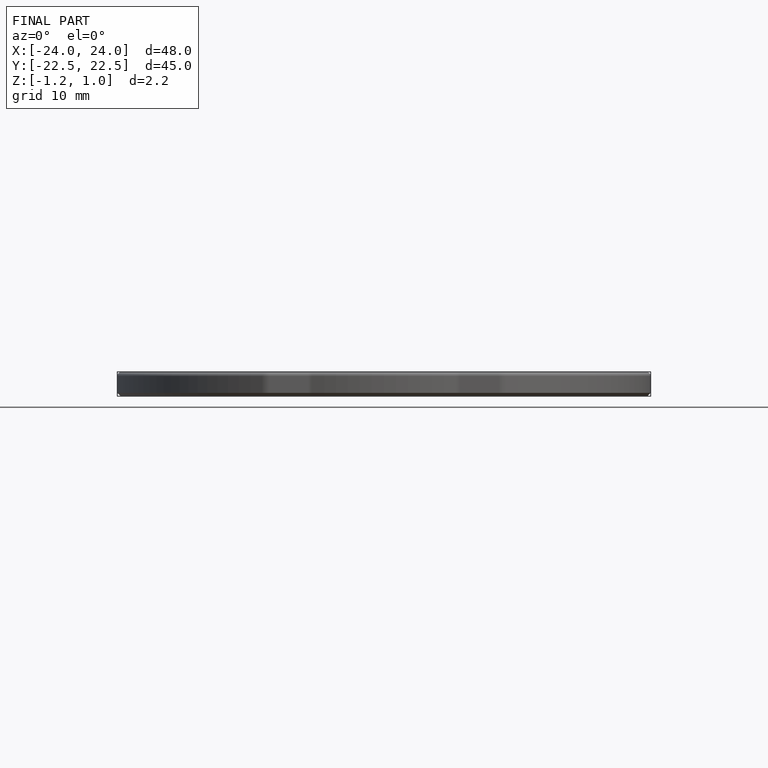
[diagram: finished part — front view with bounding-box wireframe]
